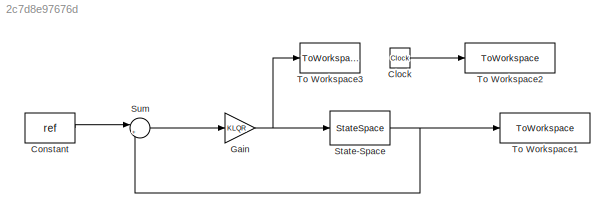
MODEL slx_2c7d8e97676d
KIND model
CONFIG AbsTol = auto
CONFIG EnableMultiTasking = off
CONFIG FixedStep = auto
CONFIG MaxStep = auto
CONFIG MinStep = auto
CONFIG RelTol = 1e-3
CONFIG SampleTimeConstraint = Unconstrained
CONFIG SolverName = VariableStepAuto
CONFIG StartTime = 0.0
CONFIG StopTime = tsim
BLOCK [Clock] Clock
BLOCK [Constant] Constant
  Value = ref
BLOCK [Gain] Gain
  Gain = KLQR
  Multiplication = Matrix(K*u)
BLOCK [StateSpace] State-Space
  A = A
  B = B
  C = [1 0 0 0; 0 1 0 0; 0 0 1 0; 0 0 0 1]
  D = [0;0;0;0]
  InitialCondition = xs
BLOCK [Sum] Sum
  Inputs = |+-
BLOCK [ToWorkspace] To Workspace1
  FixptAsFi = on
  MaxDataPoints = inf
  SampleTime = -1
  Save2DSignal = 2-D array (concatenate along first dimension)
  VariableName = output
BLOCK [ToWorkspace] To Workspace2
  FixptAsFi = on
  MaxDataPoints = inf
  SampleTime = -1
  Save2DSignal = 2-D array (concatenate along first dimension)
  VariableName = t
BLOCK [ToWorkspace] To Workspace3
  FixptAsFi = on
  MaxDataPoints = inf
  SampleTime = -1
  Save2DSignal = 2-D array (concatenate along first dimension)
  VariableName = u
LINE Clock:1 -> To Workspace2:1
LINE Constant:1 -> Sum:1
NET Gain:1 -> State-Space:1, To Workspace3:1
NET State-Space:1 -> Sum:2, To Workspace1:1
LINE Sum:1 -> Gain:1
note: NET lines group one-source signal fan-out (src -> all destinations, sorted); 1:1 wires keep LINE
